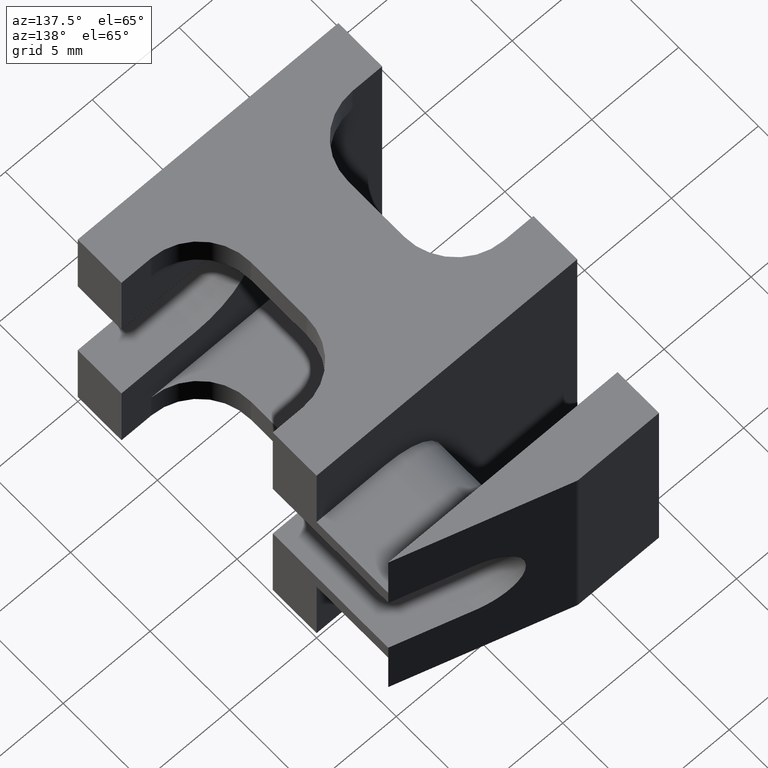
[diagram: clean part render]
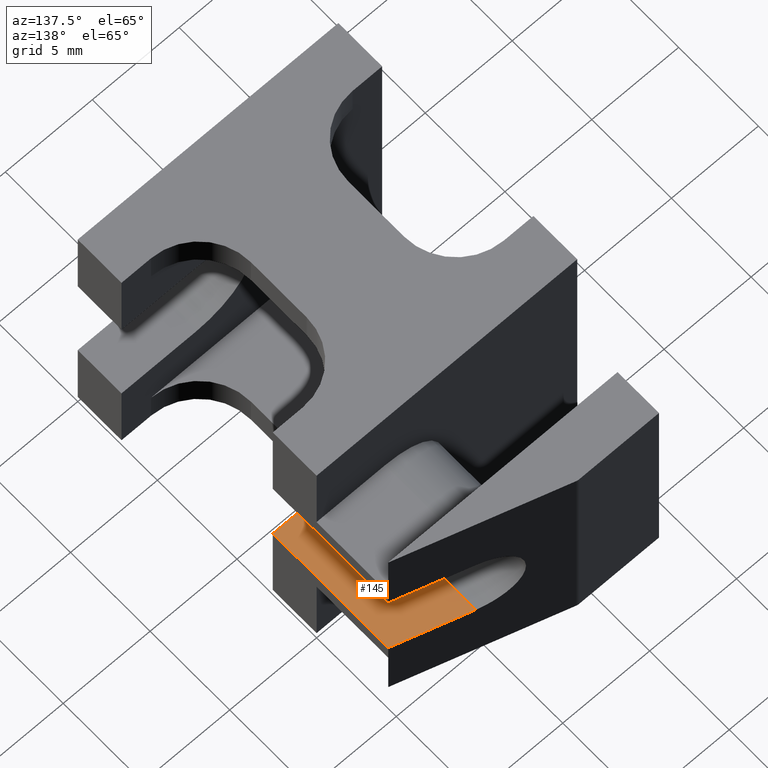
[diagram: same view with one face highlighted and labeled with its STEP entity id]
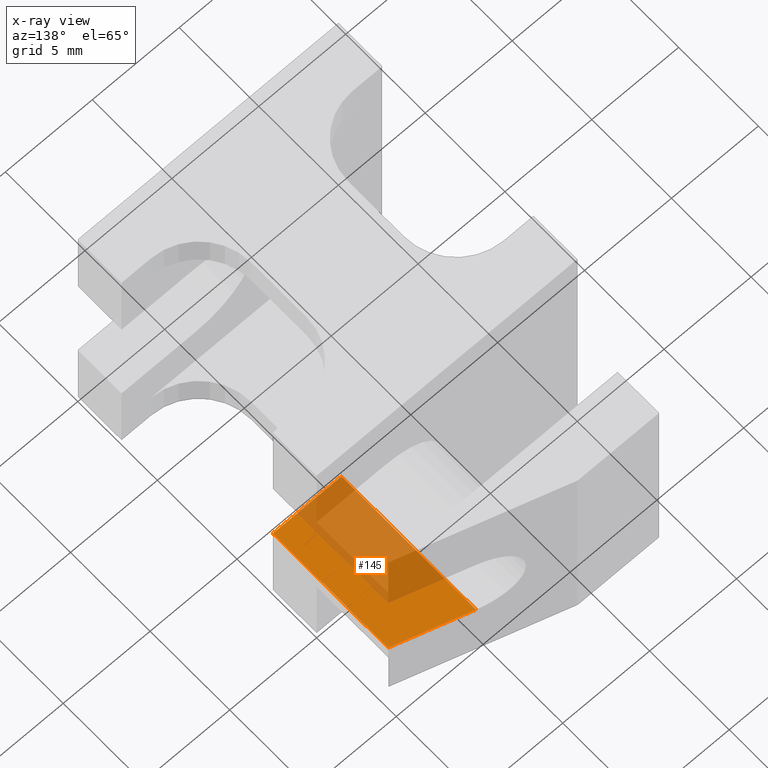
[diagram: x-ray of the same camera — body ghosted, the highlighted face saturated]
A machine part, auxiliary view. The second image highlights one B-rep face of the part: STEP entity #145.
The next image is the same camera in x-ray: the body ghosted, the highlighted face saturated — about 50% of this face is hidden behind the body in this view.
In plain terms, the highlighted planar face has unit normal (-0, 0, -1).
Its self-contained STEP definition (entity closure, byte-faithful):
#61 = EDGE_CURVE ( 'NONE', #760, #726, #932, .T. ) ;
#80 = EDGE_CURVE ( 'NONE', #756, #743, #1017, .T. ) ;
#81 = EDGE_CURVE ( 'NONE', #726, #743, #1021, .T. ) ;
#109 = EDGE_CURVE ( 'NONE', #756, #760, #1111, .T. ) ;
#145 = ADVANCED_FACE ( 'NONE', ( #299 ), #324, .F. ) ;
#285 = CARTESIAN_POINT ( 'NONE',  ( 14.99999999999999600, 36.30000000000000400, 5.650000000000001200 ) ) ;
#292 = DIRECTION ( 'NONE',  ( -2.195852501236464800E-016, 0.0000000000000000000, -1.000000000000000000 ) ) ;
#299 = FACE_OUTER_BOUND ( 'NONE', #412, .T. ) ;
#324 = PLANE ( 'NONE',  #1295 ) ;
#330 = DIRECTION ( 'NONE',  ( -1.000000000000000000, 0.0000000000000000000, 2.195852501236464800E-016 ) ) ;
#412 = EDGE_LOOP ( 'NONE', ( #593, #548, #575, #576 ) ) ;
#548 = ORIENTED_EDGE ( 'NONE', *, *, #80, .T. ) ;
#575 = ORIENTED_EDGE ( 'NONE', *, *, #81, .F. ) ;
#576 = ORIENTED_EDGE ( 'NONE', *, *, #61, .F. ) ;
#593 = ORIENTED_EDGE ( 'NONE', *, *, #109, .F. ) ;
#726 = VERTEX_POINT ( 'NONE', #1331 ) ;
#743 = VERTEX_POINT ( 'NONE', #1329 ) ;
#756 = VERTEX_POINT ( 'NONE', #1338 ) ;
#760 = VERTEX_POINT ( 'NONE', #1343 ) ;
#914 = CARTESIAN_POINT ( 'NONE',  ( 11.04999999999999500, 36.30000000000000400, 5.650000000000002100 ) ) ;
#932 = LINE ( 'NONE', #914, #1195 ) ;
#973 = DIRECTION ( 'NONE',  ( 0.0000000000000000000, 1.000000000000000000, 0.0000000000000000000 ) ) ;
#990 = DIRECTION ( 'NONE',  ( 0.0000000000000000000, 1.000000000000000000, -0.0000000000000000000 ) ) ;
#992 = CARTESIAN_POINT ( 'NONE',  ( 14.99999999999999600, 0.0000000000000000000, 5.650000000000002100 ) ) ;
#995 = DIRECTION ( 'NONE',  ( 0.9565324958237139100, -0.2916257609218649300, -2.100404273468459400E-016 ) ) ;
#1017 = LINE ( 'NONE', #992, #1222 ) ;
#1018 = CARTESIAN_POINT ( 'NONE',  ( 11.04999999999999400, 20.70426829268293300, 5.650000000000002100 ) ) ;
#1021 = LINE ( 'NONE', #1018, #1252 ) ;
#1090 = DIRECTION ( 'NONE',  ( -1.000000000000000000, 0.0000000000000000000, 2.195852501236464800E-016 ) ) ;
#1108 = CARTESIAN_POINT ( 'NONE',  ( 14.99999999999999600, 12.24999999999999600, 5.650000000000001200 ) ) ;
#1111 = LINE ( 'NONE', #1108, #1219 ) ;
#1195 = VECTOR ( 'NONE', #973, 1000.000000000000000 ) ;
#1219 = VECTOR ( 'NONE', #1090, 1000.000000000000000 ) ;
#1222 = VECTOR ( 'NONE', #990, 1000.000000000000000 ) ;
#1252 = VECTOR ( 'NONE', #995, 1000.000000000000100 ) ;
#1295 = AXIS2_PLACEMENT_3D ( 'NONE', #285, #292, #330 ) ;
#1329 = CARTESIAN_POINT ( 'NONE',  ( 14.99999999999999500, 19.50000000000000000, 5.650000000000003000 ) ) ;
#1331 = CARTESIAN_POINT ( 'NONE',  ( 11.04999999999999500, 20.70426829268292900, 5.650000000000001200 ) ) ;
#1338 = CARTESIAN_POINT ( 'NONE',  ( 14.99999999999999600, 12.24999999999999800, 5.650000000000002100 ) ) ;
#1343 = CARTESIAN_POINT ( 'NONE',  ( 11.04999999999999500, 12.24999999999999600, 5.650000000000002100 ) ) ;